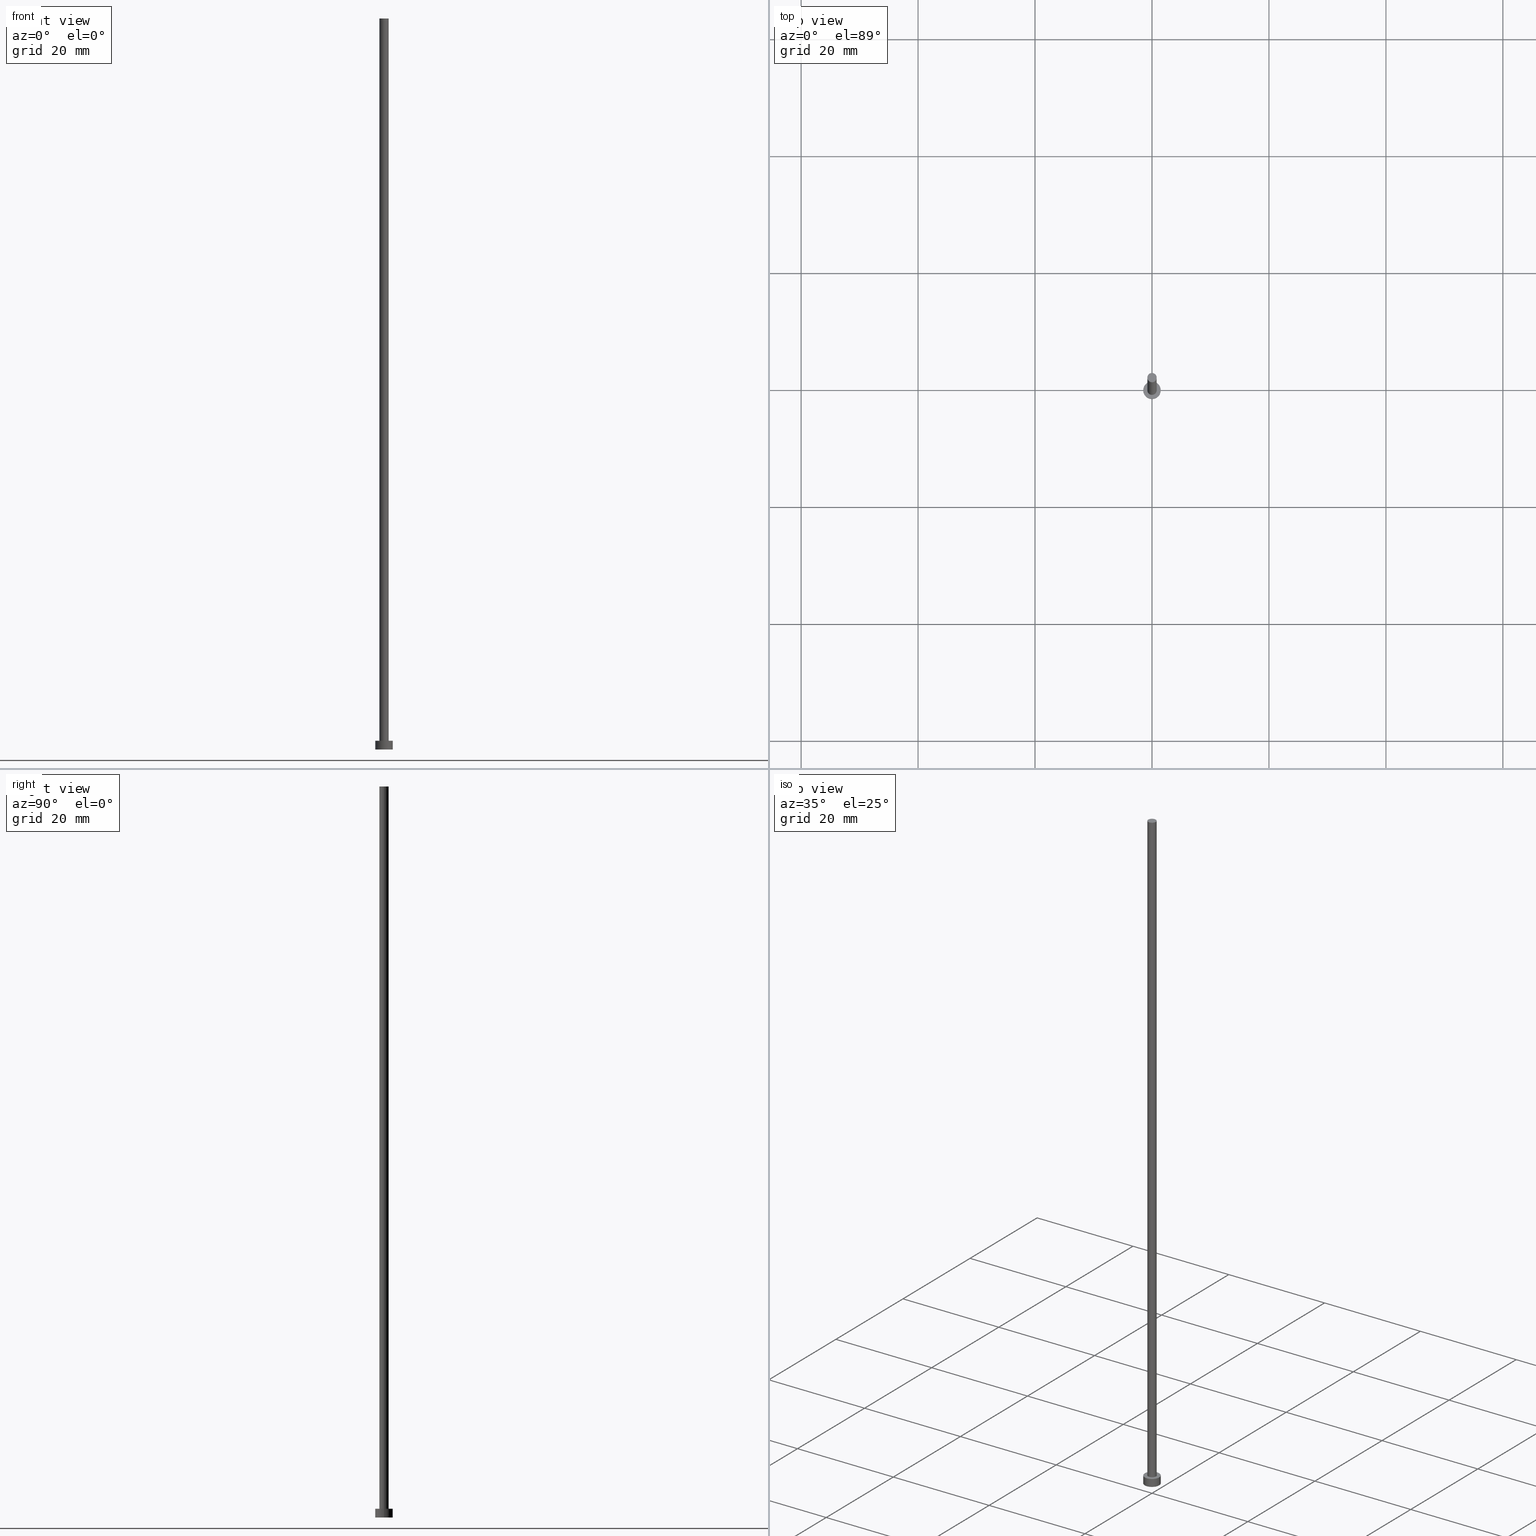
[diagram: canonical four-view strip — front | top / right | iso, engineering-drawing reading convention]
A machine part, canonical four-view strip (front | top / right | iso — engineering-drawing reading convention). The complete STEP part file that produces these views, byte-faithful:
ISO-10303-21;
HEADER;
FILE_DESCRIPTION (( 'STEP AP203' ),
    '1' );
FILE_NAME ('ce29.STEP',
    '2023-02-13T15:24:14',
    ( '' ),
    ( '' ),
    'SwSTEP 2.0',
    'SolidWorks 2019',
    '' );
FILE_SCHEMA (( 'CONFIG_CONTROL_DESIGN' ));
ENDSEC;

DATA;
#1 = CLOSED_SHELL ( 'NONE', ( #10, #201, #26, #198, #214, #243, #227 ) ) ;
#2 = LOCAL_TIME ( 16, 24, 14.00000000000000000, #103 ) ;
#3 = APPROVAL ( #167, 'NEUR�EN�' ) ;
#4 =( LENGTH_UNIT ( ) NAMED_UNIT ( * ) SI_UNIT ( .MILLI., .METRE. ) );
#5 = VERTEX_POINT ( 'NONE', #80 ) ;
#6 = CC_DESIGN_PERSON_AND_ORGANIZATION_ASSIGNMENT ( #186, #248, ( #158 ) ) ;
#7 = DIRECTION ( 'NONE',  ( 0.000000000000000000, 0.000000000000000000, 1.000000000000000000 ) ) ;
#8 = APPROVAL_ROLE ( '' ) ;
#9 = VERTEX_POINT ( 'NONE', #218 ) ;
#10 = ADVANCED_FACE ( 'NONE', ( #139 ), #20, .T. ) ;
#11 = CIRCLE ( 'NONE', #249, 1.500000000000000222 ) ;
#12 = LOCAL_TIME ( 16, 24, 14.00000000000000000, #205 ) ;
#13 = CARTESIAN_POINT ( 'NONE',  ( 0.000000000000000000, 0.000000000000000000, 1.500000000000000000 ) ) ;
#14 = ORIENTED_EDGE ( 'NONE', *, *, #83, .T. ) ;
#15 = FACE_OUTER_BOUND ( 'NONE', #135, .T. ) ;
#16 = LINE ( 'NONE', #42, #45 ) ;
#17 = DIRECTION ( 'NONE',  ( -0.000000000000000000, -0.000000000000000000, -1.000000000000000000 ) ) ;
#18 = PRODUCT ( 'ce29', 'ce29', '', ( #112 ) ) ;
#19 = CC_DESIGN_SECURITY_CLASSIFICATION ( #28, ( #158 ) ) ;
#20 = CYLINDRICAL_SURFACE ( 'NONE', #91, 0.8000000000000000444 ) ;
#21 = EDGE_CURVE ( 'NONE', #85, #95, #232, .T. ) ;
#22 = MANIFOLD_SOLID_BREP ( 'P�idat vysunut�m3', #1 ) ;
#23 = PLANE ( 'NONE',  #188 ) ;
#24 = APPLICATION_PROTOCOL_DEFINITION ( 'international standard', 'config_control_design', 1994, #166 ) ;
#25 = COORDINATED_UNIVERSAL_TIME_OFFSET ( 1, 0, .AHEAD. ) ;
#26 = ADVANCED_FACE ( 'NONE', ( #15 ), #245, .T. ) ;
#27 = FACE_OUTER_BOUND ( 'NONE', #164, .T. ) ;
#28 = SECURITY_CLASSIFICATION ( '', '', #29 ) ;
#29 = SECURITY_CLASSIFICATION_LEVEL ( 'unclassified' ) ;
#30 = PERSON_AND_ORGANIZATION ( #54, #53 ) ;
#31 = CIRCLE ( 'NONE', #92, 0.8000000000000000444 ) ;
#32 = ORIENTED_EDGE ( 'NONE', *, *, #117, .F. ) ;
#33 = APPROVAL_PERSON_ORGANIZATION ( #229, #3, #228 ) ;
#34 = EDGE_LOOP ( 'NONE', ( #73, #138, #209, #74 ) ) ;
#35 = LINE ( 'NONE', #137, #123 ) ;
#36 = AXIS2_PLACEMENT_3D ( 'NONE', #163, #69, #62 ) ;
#37 = CC_DESIGN_PERSON_AND_ORGANIZATION_ASSIGNMENT ( #124, #200, ( #158 ) ) ;
#38 = CALENDAR_DATE ( 2023, 13, 2 ) ;
#39 = DIRECTION ( 'NONE',  ( 0.000000000000000000, 0.000000000000000000, 1.000000000000000000 ) ) ;
#40 = DIRECTION ( 'NONE',  ( 1.000000000000000000, 0.000000000000000000, 0.000000000000000000 ) ) ;
#41 = CC_DESIGN_APPROVAL ( #52, ( #158 ) ) ;
#42 = CARTESIAN_POINT ( 'NONE',  ( -1.500000000000000222, 0.000000000000000000, 1.500000000000000000 ) ) ;
#43 = DIRECTION ( 'NONE',  ( 1.000000000000000000, 0.000000000000000000, 0.000000000000000000 ) ) ;
#44 = APPROVAL_STATUS ( 'not_yet_approved' ) ;
#45 = VECTOR ( 'NONE', #195, 1000.000000000000000 ) ;
#46 = CYLINDRICAL_SURFACE ( 'NONE', #145, 1.500000000000000222 ) ;
#47 = APPROVAL_PERSON_ORGANIZATION ( #206, #52, #8 ) ;
#48 = DIRECTION ( 'NONE',  ( -0.000000000000000000, -0.000000000000000000, -1.000000000000000000 ) ) ;
#49 = LOCAL_TIME ( 16, 24, 14.00000000000000000, #169 ) ;
#50 = DATE_TIME_ROLE ( 'creation_date' ) ;
#51 = DIRECTION ( 'NONE',  ( 0.000000000000000000, 0.000000000000000000, 1.000000000000000000 ) ) ;
#52 = APPROVAL ( #44, 'NEUR�EN�' ) ;
#53 = ORGANIZATION ( 'NEUR�EN�', 'NEUR�EN�', '' ) ;
#54 = PERSON ( 'NEUR�EN�', 'NEUR�EN�', 'NEUR�EN�', ('NEUR�EN�'), ('NEUR�EN�'), ('NEUR�EN�') ) ;
#55 = CARTESIAN_POINT ( 'NONE',  ( 0.000000000000000000, 0.000000000000000000, 0.000000000000000000 ) ) ;
#56 = DIRECTION ( 'NONE',  ( 0.000000000000000000, 0.000000000000000000, 1.000000000000000000 ) ) ;
#57 =( NAMED_UNIT ( * ) SI_UNIT ( $, .STERADIAN. ) SOLID_ANGLE_UNIT ( ) );
#58 = ORIENTED_EDGE ( 'NONE', *, *, #132, .T. ) ;
#59 = DIRECTION ( 'NONE',  ( -0.000000000000000000, -0.000000000000000000, -1.000000000000000000 ) ) ;
#60 = COORDINATED_UNIVERSAL_TIME_OFFSET ( 1, 0, .AHEAD. ) ;
#61 = CARTESIAN_POINT ( 'NONE',  ( 0.000000000000000000, 0.000000000000000000, 1.500000000000000000 ) ) ;
#62 = DIRECTION ( 'NONE',  ( 1.000000000000000000, 0.000000000000000000, 0.000000000000000000 ) ) ;
#63 = CALENDAR_DATE ( 2023, 13, 2 ) ;
#64 = ORIENTED_EDGE ( 'NONE', *, *, #68, .F. ) ;
#65 = DATE_AND_TIME ( #63, #49 ) ;
#66 = CARTESIAN_POINT ( 'NONE',  ( 0.000000000000000000, 0.000000000000000000, 1.500000000000000000 ) ) ;
#67 = VERTEX_POINT ( 'NONE', #242 ) ;
#68 = EDGE_CURVE ( 'NONE', #67, #9, #101, .T. ) ;
#69 = DIRECTION ( 'NONE',  ( 0.000000000000000000, 0.000000000000000000, 1.000000000000000000 ) ) ;
#70 = DATE_AND_TIME ( #185, #2 ) ;
#71 = EDGE_CURVE ( 'NONE', #95, #111, #16, .T. ) ;
#72 = CARTESIAN_POINT ( 'NONE',  ( 1.500000000000000222, 1.836970198721030181E-16, 0.000000000000000000 ) ) ;
#73 = ORIENTED_EDGE ( 'NONE', *, *, #132, .F. ) ;
#74 = ORIENTED_EDGE ( 'NONE', *, *, #183, .T. ) ;
#75 = CC_DESIGN_APPROVAL ( #3, ( #28 ) ) ;
#76 = DIRECTION ( 'NONE',  ( -1.000000000000000000, 0.000000000000000000, 0.000000000000000000 ) ) ;
#77 = FACE_OUTER_BOUND ( 'NONE', #34, .T. ) ;
#78 = CARTESIAN_POINT ( 'NONE',  ( 0.000000000000000000, 0.000000000000000000, 125.0000000000000000 ) ) ;
#79 = APPROVAL_DATE_TIME ( #178, #81 ) ;
#80 = CARTESIAN_POINT ( 'NONE',  ( 0.8000000000000000444, 9.797174393178826150E-17, 1.500000000000000000 ) ) ;
#81 = APPROVAL ( #184, 'NEUR�EN�' ) ;
#82 = PERSON_AND_ORGANIZATION ( #54, #53 ) ;
#83 = EDGE_CURVE ( 'NONE', #85, #226, #35, .T. ) ;
#84 = CARTESIAN_POINT ( 'NONE',  ( 0.000000000000000000, 0.000000000000000000, 1.500000000000000000 ) ) ;
#85 = VERTEX_POINT ( 'NONE', #155 ) ;
#86 = APPROVAL_PERSON_ORGANIZATION ( #82, #81, #165 ) ;
#87 = ORIENTED_EDGE ( 'NONE', *, *, #68, .T. ) ;
#88 =( NAMED_UNIT ( * ) PLANE_ANGLE_UNIT ( ) SI_UNIT ( $, .RADIAN. ) );
#89 = CALENDAR_DATE ( 2023, 13, 2 ) ;
#90 = DATE_AND_TIME ( #89, #12 ) ;
#91 = AXIS2_PLACEMENT_3D ( 'NONE', #78, #159, #115 ) ;
#92 = AXIS2_PLACEMENT_3D ( 'NONE', #146, #7, #43 ) ;
#93 = ORIENTED_EDGE ( 'NONE', *, *, #126, .F. ) ;
#94 = ORIENTED_EDGE ( 'NONE', *, *, #71, .F. ) ;
#95 = VERTEX_POINT ( 'NONE', #99 ) ;
#96 = EDGE_LOOP ( 'NONE', ( #235, #14, #212, #94 ) ) ;
#97 = CC_DESIGN_DATE_AND_TIME_ASSIGNMENT ( #90, #50, ( #147 ) ) ;
#98 = CARTESIAN_POINT ( 'NONE',  ( 0.000000000000000000, 0.000000000000000000, 125.0000000000000000 ) ) ;
#99 = CARTESIAN_POINT ( 'NONE',  ( -1.500000000000000222, 0.000000000000000000, 1.500000000000000000 ) ) ;
#100 = DIRECTION ( 'NONE',  ( 1.000000000000000000, 0.000000000000000000, 0.000000000000000000 ) ) ;
#101 = CIRCLE ( 'NONE', #140, 0.8000000000000000444 ) ;
#102 = DIRECTION ( 'NONE',  ( 0.000000000000000000, 0.000000000000000000, 1.000000000000000000 ) ) ;
#103 = COORDINATED_UNIVERSAL_TIME_OFFSET ( 1, 0, .AHEAD. ) ;
#104 = CARTESIAN_POINT ( 'NONE',  ( 0.8000000000000000444, 9.797174393178826150E-17, 125.0000000000000000 ) ) ;
#105 = EDGE_LOOP ( 'NONE', ( #64, #58, #160, #32 ) ) ;
#106 = CALENDAR_DATE ( 2023, 13, 2 ) ;
#107 = DATE_AND_TIME ( #106, #190 ) ;
#108 = DIRECTION ( 'NONE',  ( 1.000000000000000000, 0.000000000000000000, 0.000000000000000000 ) ) ;
#109 = EDGE_LOOP ( 'NONE', ( #253, #251 ) ) ;
#110 = PLANE ( 'NONE',  #149 ) ;
#111 = VERTEX_POINT ( 'NONE', #239 ) ;
#112 = MECHANICAL_CONTEXT ( 'NONE', #216, 'mechanical' ) ;
#113 = VECTOR ( 'NONE', #121, 1000.000000000000000 ) ;
#114 = APPLICATION_PROTOCOL_DEFINITION ( 'international standard', 'config_control_design', 1994, #216 ) ;
#115 = DIRECTION ( 'NONE',  ( -1.000000000000000000, 0.000000000000000000, 0.000000000000000000 ) ) ;
#116 = CARTESIAN_POINT ( 'NONE',  ( 0.000000000000000000, 0.000000000000000000, 0.000000000000000000 ) ) ;
#117 = EDGE_CURVE ( 'NONE', #9, #234, #179, .T. ) ;
#118 = DIRECTION ( 'NONE',  ( 0.000000000000000000, 0.000000000000000000, 1.000000000000000000 ) ) ;
#119 = CARTESIAN_POINT ( 'NONE',  ( -0.8000000000000000444, 0.000000000000000000, 125.0000000000000000 ) ) ;
#120 = DESIGN_CONTEXT ( 'detailed design', #166, 'design' ) ;
#121 = DIRECTION ( 'NONE',  ( -0.000000000000000000, -0.000000000000000000, -1.000000000000000000 ) ) ;
#122 = FACE_BOUND ( 'NONE', #109, .T. ) ;
#123 = VECTOR ( 'NONE', #175, 1000.000000000000000 ) ;
#124 = PERSON_AND_ORGANIZATION ( #54, #53 ) ;
#125 = CC_DESIGN_APPROVAL ( #81, ( #147 ) ) ;
#126 = EDGE_CURVE ( 'NONE', #95, #85, #11, .T. ) ;
#127 = DIRECTION ( 'NONE',  ( -1.000000000000000000, 0.000000000000000000, 0.000000000000000000 ) ) ;
#128 = DATE_TIME_ROLE ( 'classification_date' ) ;
#129 = FACE_OUTER_BOUND ( 'NONE', #96, .T. ) ;
#130 = PERSON_AND_ORGANIZATION ( #54, #53 ) ;
#131 = CIRCLE ( 'NONE', #223, 0.8000000000000000444 ) ;
#132 = EDGE_CURVE ( 'NONE', #67, #5, #255, .T. ) ;
#133 = APPROVAL_DATE_TIME ( #70, #3 ) ;
#134 = DIRECTION ( 'NONE',  ( 0.000000000000000000, 0.000000000000000000, 1.000000000000000000 ) ) ;
#135 = EDGE_LOOP ( 'NONE', ( #219, #93, #148, #136 ) ) ;
#136 = ORIENTED_EDGE ( 'NONE', *, *, #207, .T. ) ;
#137 = CARTESIAN_POINT ( 'NONE',  ( 1.500000000000000222, 1.836970198721030181E-16, 1.500000000000000000 ) ) ;
#138 = ORIENTED_EDGE ( 'NONE', *, *, #203, .F. ) ;
#139 = FACE_OUTER_BOUND ( 'NONE', #105, .T. ) ;
#140 = AXIS2_PLACEMENT_3D ( 'NONE', #98, #118, #196 ) ;
#141 = EDGE_CURVE ( 'NONE', #226, #111, #187, .T. ) ;
#142 = CARTESIAN_POINT ( 'NONE',  ( 0.000000000000000000, 0.000000000000000000, 1.500000000000000000 ) ) ;
#143 = PERSON_AND_ORGANIZATION_ROLE ( 'design_owner' ) ;
#144 = DIRECTION ( 'NONE',  ( -1.000000000000000000, 0.000000000000000000, 0.000000000000000000 ) ) ;
#145 = AXIS2_PLACEMENT_3D ( 'NONE', #84, #48, #127 ) ;
#146 = CARTESIAN_POINT ( 'NONE',  ( 0.000000000000000000, 0.000000000000000000, 1.500000000000000000 ) ) ;
#147 = PRODUCT_DEFINITION ( 'NEZN�M�', '', #158, #120 ) ;
#148 = ORIENTED_EDGE ( 'NONE', *, *, #71, .T. ) ;
#149 = AXIS2_PLACEMENT_3D ( 'NONE', #192, #172, #252 ) ;
#150 = PERSON_AND_ORGANIZATION_ROLE ( 'classification_officer' ) ;
#151 = FACE_OUTER_BOUND ( 'NONE', #168, .T. ) ;
#152 = CARTESIAN_POINT ( 'NONE',  ( 0.000000000000000000, 0.000000000000000000, 0.000000000000000000 ) ) ;
#153 = ORIENTED_EDGE ( 'NONE', *, *, #203, .T. ) ;
#154 = CARTESIAN_POINT ( 'NONE',  ( -0.8000000000000000444, 0.000000000000000000, 1.500000000000000000 ) ) ;
#155 = CARTESIAN_POINT ( 'NONE',  ( 1.500000000000000222, 1.836970198721030181E-16, 1.500000000000000000 ) ) ;
#156 = CC_DESIGN_PERSON_AND_ORGANIZATION_ASSIGNMENT ( #30, #150, ( #28 ) ) ;
#157 = AXIS2_PLACEMENT_3D ( 'NONE', #238, #56, #222 ) ;
#158 = PRODUCT_DEFINITION_FORMATION_WITH_SPECIFIED_SOURCE ( 'LIBOVOLN�', '', #18, .NOT_KNOWN. ) ;
#159 = DIRECTION ( 'NONE',  ( -0.000000000000000000, -0.000000000000000000, -1.000000000000000000 ) ) ;
#160 = ORIENTED_EDGE ( 'NONE', *, *, #250, .T. ) ;
#161 = ADVANCED_BREP_SHAPE_REPRESENTATION ( 'ce29', ( #22, #254 ), #204 ) ;
#162 = CIRCLE ( 'NONE', #241, 1.500000000000000222 ) ;
#163 = CARTESIAN_POINT ( 'NONE',  ( 0.000000000000000000, 0.000000000000000000, 0.000000000000000000 ) ) ;
#164 = EDGE_LOOP ( 'NONE', ( #191, #247 ) ) ;
#165 = APPROVAL_ROLE ( '' ) ;
#166 = APPLICATION_CONTEXT ( 'configuration controlled 3d designs of mechanical parts and assemblies' ) ;
#167 = APPROVAL_STATUS ( 'not_yet_approved' ) ;
#168 = EDGE_LOOP ( 'NONE', ( #181, #193 ) ) ;
#169 = COORDINATED_UNIVERSAL_TIME_OFFSET ( 1, 0, .AHEAD. ) ;
#170 = APPROVAL_DATE_TIME ( #65, #52 ) ;
#171 = DIRECTION ( 'NONE',  ( 0.000000000000000000, 0.000000000000000000, 1.000000000000000000 ) ) ;
#172 = DIRECTION ( 'NONE',  ( 0.000000000000000000, 0.000000000000000000, 1.000000000000000000 ) ) ;
#173 = PRODUCT_DEFINITION_SHAPE ( 'NONE', 'NONE',  #147 ) ;
#174 = EDGE_LOOP ( 'NONE', ( #153, #87 ) ) ;
#175 = DIRECTION ( 'NONE',  ( -0.000000000000000000, -0.000000000000000000, -1.000000000000000000 ) ) ;
#176 = CARTESIAN_POINT ( 'NONE',  ( 0.000000000000000000, 0.000000000000000000, 125.0000000000000000 ) ) ;
#177 = DIRECTION ( 'NONE',  ( 0.000000000000000000, 0.000000000000000000, 1.000000000000000000 ) ) ;
#178 = DATE_AND_TIME ( #38, #182 ) ;
#179 = LINE ( 'NONE', #119, #199 ) ;
#180 = CIRCLE ( 'NONE', #210, 0.8000000000000000444 ) ;
#181 = ORIENTED_EDGE ( 'NONE', *, *, #207, .F. ) ;
#182 = LOCAL_TIME ( 16, 24, 14.00000000000000000, #60 ) ;
#183 = EDGE_CURVE ( 'NONE', #234, #5, #31, .T. ) ;
#184 = APPROVAL_STATUS ( 'not_yet_approved' ) ;
#185 = CALENDAR_DATE ( 2023, 13, 2 ) ;
#186 = PERSON_AND_ORGANIZATION ( #54, #53 ) ;
#187 = CIRCLE ( 'NONE', #36, 1.500000000000000222 ) ;
#188 = AXIS2_PLACEMENT_3D ( 'NONE', #66, #102, #230 ) ;
#189 = CC_DESIGN_PERSON_AND_ORGANIZATION_ASSIGNMENT ( #244, #143, ( #18 ) ) ;
#190 = LOCAL_TIME ( 16, 24, 14.00000000000000000, #25 ) ;
#191 = ORIENTED_EDGE ( 'NONE', *, *, #126, .T. ) ;
#192 = CARTESIAN_POINT ( 'NONE',  ( 0.000000000000000000, 0.000000000000000000, 125.0000000000000000 ) ) ;
#193 = ORIENTED_EDGE ( 'NONE', *, *, #141, .F. ) ;
#194 = CYLINDRICAL_SURFACE ( 'NONE', #246, 0.8000000000000000444 ) ;
#195 = DIRECTION ( 'NONE',  ( -0.000000000000000000, -0.000000000000000000, -1.000000000000000000 ) ) ;
#196 = DIRECTION ( 'NONE',  ( 1.000000000000000000, 0.000000000000000000, 0.000000000000000000 ) ) ;
#197 = AXIS2_PLACEMENT_3D ( 'NONE', #55, #51, #213 ) ;
#198 = ADVANCED_FACE ( 'NONE', ( #122, #27 ), #23, .T. ) ;
#199 = VECTOR ( 'NONE', #59, 1000.000000000000000 ) ;
#200 = PERSON_AND_ORGANIZATION_ROLE ( 'design_supplier' ) ;
#201 = ADVANCED_FACE ( 'NONE', ( #129 ), #46, .T. ) ;
#202 = CARTESIAN_POINT ( 'NONE',  ( 0.000000000000000000, 0.000000000000000000, 125.0000000000000000 ) ) ;
#203 = EDGE_CURVE ( 'NONE', #9, #67, #180, .T. ) ;
#204 =( GEOMETRIC_REPRESENTATION_CONTEXT ( 3 ) GLOBAL_UNCERTAINTY_ASSIGNED_CONTEXT ( ( #224 ) ) GLOBAL_UNIT_ASSIGNED_CONTEXT ( ( #4, #88, #57 ) ) REPRESENTATION_CONTEXT ( 'NONE', 'WORKASPACE' ) );
#205 = COORDINATED_UNIVERSAL_TIME_OFFSET ( 1, 0, .AHEAD. ) ;
#206 = PERSON_AND_ORGANIZATION ( #54, #53 ) ;
#207 = EDGE_CURVE ( 'NONE', #111, #226, #162, .T. ) ;
#208 = FACE_OUTER_BOUND ( 'NONE', #174, .T. ) ;
#209 = ORIENTED_EDGE ( 'NONE', *, *, #117, .T. ) ;
#210 = AXIS2_PLACEMENT_3D ( 'NONE', #202, #134, #108 ) ;
#211 = DIRECTION ( 'NONE',  ( 1.000000000000000000, 0.000000000000000000, 0.000000000000000000 ) ) ;
#212 = ORIENTED_EDGE ( 'NONE', *, *, #141, .T. ) ;
#213 = DIRECTION ( 'NONE',  ( 1.000000000000000000, 0.000000000000000000, -0.000000000000000000 ) ) ;
#214 = ADVANCED_FACE ( 'NONE', ( #151 ), #237, .F. ) ;
#215 = DIRECTION ( 'NONE',  ( 1.000000000000000000, 0.000000000000000000, 0.000000000000000000 ) ) ;
#216 = APPLICATION_CONTEXT ( 'configuration controlled 3d designs of mechanical parts and assemblies' ) ;
#217 = CC_DESIGN_DATE_AND_TIME_ASSIGNMENT ( #107, #128, ( #28 ) ) ;
#218 = CARTESIAN_POINT ( 'NONE',  ( -0.8000000000000000444, 0.000000000000000000, 125.0000000000000000 ) ) ;
#219 = ORIENTED_EDGE ( 'NONE', *, *, #83, .F. ) ;
#220 = DIRECTION ( 'NONE',  ( 0.000000000000000000, 0.000000000000000000, 1.000000000000000000 ) ) ;
#221 = DIRECTION ( 'NONE',  ( -0.000000000000000000, -0.000000000000000000, -1.000000000000000000 ) ) ;
#222 = DIRECTION ( 'NONE',  ( 1.000000000000000000, 0.000000000000000000, 0.000000000000000000 ) ) ;
#223 = AXIS2_PLACEMENT_3D ( 'NONE', #13, #220, #40 ) ;
#224 = UNCERTAINTY_MEASURE_WITH_UNIT (LENGTH_MEASURE( 1.000000000000000082E-05 ), #4, 'distance_accuracy_value', 'NONE');
#225 = PERSON_AND_ORGANIZATION_ROLE ( 'creator' ) ;
#226 = VERTEX_POINT ( 'NONE', #72 ) ;
#227 = ADVANCED_FACE ( 'NONE', ( #208 ), #110, .T. ) ;
#228 = APPROVAL_ROLE ( '' ) ;
#229 = PERSON_AND_ORGANIZATION ( #54, #53 ) ;
#230 = DIRECTION ( 'NONE',  ( 1.000000000000000000, 0.000000000000000000, -0.000000000000000000 ) ) ;
#231 = SHAPE_DEFINITION_REPRESENTATION ( #173, #161 ) ;
#232 = CIRCLE ( 'NONE', #157, 1.500000000000000222 ) ;
#233 = PRODUCT_RELATED_PRODUCT_CATEGORY ( 'detail', '', ( #18 ) ) ;
#234 = VERTEX_POINT ( 'NONE', #154 ) ;
#235 = ORIENTED_EDGE ( 'NONE', *, *, #21, .F. ) ;
#236 = CC_DESIGN_PERSON_AND_ORGANIZATION_ASSIGNMENT ( #130, #225, ( #147 ) ) ;
#237 = PLANE ( 'NONE',  #197 ) ;
#238 = CARTESIAN_POINT ( 'NONE',  ( 0.000000000000000000, 0.000000000000000000, 1.500000000000000000 ) ) ;
#239 = CARTESIAN_POINT ( 'NONE',  ( -1.500000000000000222, 0.000000000000000000, 0.000000000000000000 ) ) ;
#240 = AXIS2_PLACEMENT_3D ( 'NONE', #142, #221, #76 ) ;
#241 = AXIS2_PLACEMENT_3D ( 'NONE', #152, #171, #211 ) ;
#242 = CARTESIAN_POINT ( 'NONE',  ( 0.8000000000000000444, 9.797174393178826150E-17, 125.0000000000000000 ) ) ;
#243 = ADVANCED_FACE ( 'NONE', ( #77 ), #194, .T. ) ;
#244 = PERSON_AND_ORGANIZATION ( #54, #53 ) ;
#245 = CYLINDRICAL_SURFACE ( 'NONE', #240, 1.500000000000000222 ) ;
#246 = AXIS2_PLACEMENT_3D ( 'NONE', #176, #17, #144 ) ;
#247 = ORIENTED_EDGE ( 'NONE', *, *, #21, .T. ) ;
#248 = PERSON_AND_ORGANIZATION_ROLE ( 'creator' ) ;
#249 = AXIS2_PLACEMENT_3D ( 'NONE', #61, #39, #100 ) ;
#250 = EDGE_CURVE ( 'NONE', #5, #234, #131, .T. ) ;
#251 = ORIENTED_EDGE ( 'NONE', *, *, #250, .F. ) ;
#252 = DIRECTION ( 'NONE',  ( 1.000000000000000000, 0.000000000000000000, -0.000000000000000000 ) ) ;
#253 = ORIENTED_EDGE ( 'NONE', *, *, #183, .F. ) ;
#254 = AXIS2_PLACEMENT_3D ( 'NONE', #116, #177, #215 ) ;
#255 = LINE ( 'NONE', #104, #113 ) ;
ENDSEC;
END-ISO-10303-21;
